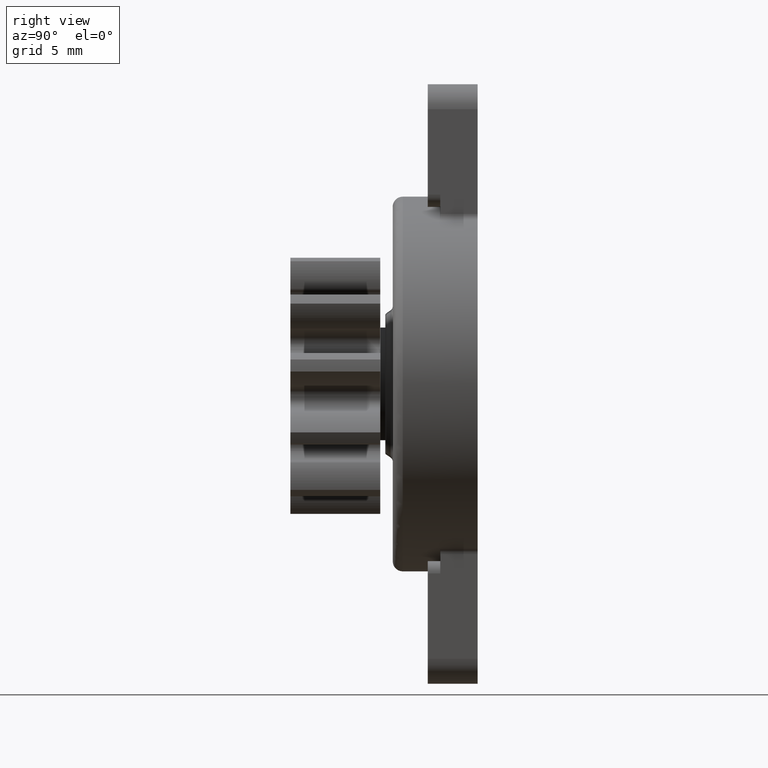
[diagram: clean part render]
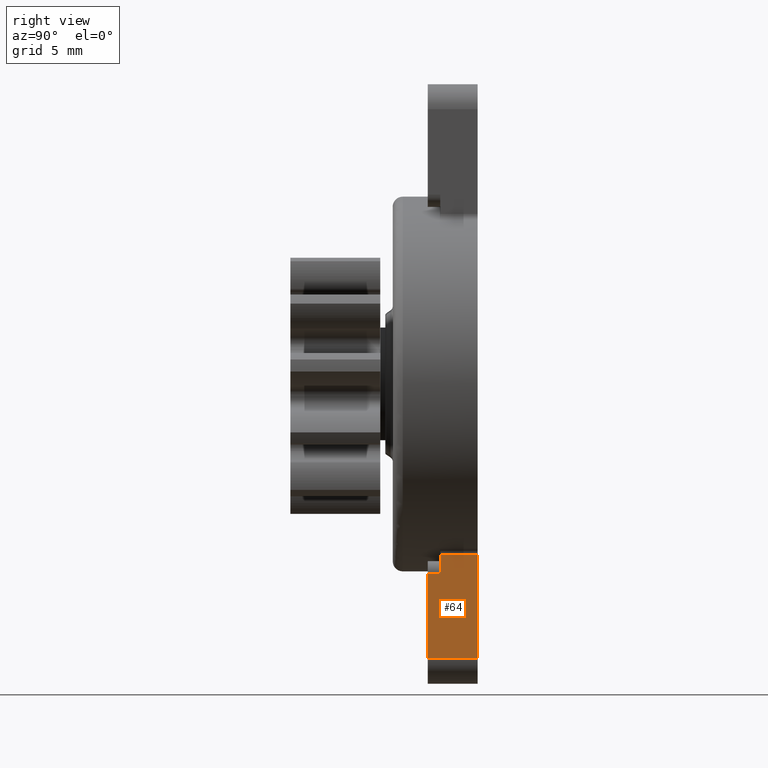
[diagram: same view with one face highlighted and labeled with its STEP entity id]
A machine part, right view. The second image highlights one B-rep face of the part: STEP entity #64.
In plain terms, the highlighted planar face has unit normal (1, 0, 0).
Its self-contained STEP definition (entity closure, byte-faithful):
#64=ADVANCED_FACE('',(#931),#930,.T.);
#930=PLANE('',#7261);
#931=FACE_OUTER_BOUND('',#7262,.T.);
#7258=CARTESIAN_POINT('',(3.50000000000E+00,-2.20000000000E+00,-6.39293090717E+00));
#7259=DIRECTION('',(1.00000000000E+00,0.00000000000E+00,0.00000000000E+00));
#7260=DIRECTION('',(0.00000000000E+00,0.00000000000E+00,-1.00000000000E+00));
#7261=AXIS2_PLACEMENT_3D('',#7258,#7259,#7260);
#7262=EDGE_LOOP('',(#10598,#10599,#10600,#10601,#10602,#10603));
#10598=ORIENTED_EDGE('',*,*,#14333,.T.);
#10599=ORIENTED_EDGE('',*,*,#14359,.T.);
#10600=ORIENTED_EDGE('',*,*,#14309,.F.);
#10601=ORIENTED_EDGE('',*,*,#14324,.T.);
#10602=ORIENTED_EDGE('',*,*,#14288,.F.);
#10603=ORIENTED_EDGE('',*,*,#14368,.F.);
#14288=EDGE_CURVE('',#16274,#16281,#16282,.T.);
#14309=EDGE_CURVE('',#16418,#16376,#16425,.T.);
#14324=EDGE_CURVE('',#16418,#16281,#16525,.T.);
#14333=EDGE_CURVE('',#16588,#16581,#16589,.T.);
#14359=EDGE_CURVE('',#16581,#16376,#16762,.T.);
#14368=EDGE_CURVE('',#16588,#16274,#16816,.T.);
#16274=VERTEX_POINT('',#28961);
#16281=VERTEX_POINT('',#28966);
#16282=LINE('',#28967,#28968);
#16376=VERTEX_POINT('',#29026);
#16418=VERTEX_POINT('',#29055);
#16425=LINE('',#29060,#29061);
#16525=LINE('',#29124,#29125);
#16581=VERTEX_POINT('',#29160);
#16588=VERTEX_POINT('',#29165);
#16589=LINE('',#29166,#29167);
#16762=LINE('',#29275,#29276);
#16816=LINE('',#29302,#29303);
#28961=CARTESIAN_POINT('',(3.50000009537E+00,-2.00000000000E+00,-1.09999999476E+01));
#28966=CARTESIAN_POINT('',(3.50000000000E+00,-2.00000000000E+00,-7.58711560000E+00));
#28967=CARTESIAN_POINT('',(3.50000000000E+00,-2.00000000000E+00,-1.09999999476E+01));
#28968=VECTOR('',#28969,3.41288434764E+00);
#28969=DIRECTION('',(0.00000000000E+00,0.00000000000E+00,1.00000000000E+00));
#29026=CARTESIAN_POINT('',(3.50000000000E+00,-1.50000000000E+00,-6.81175536540E+00));
#29055=CARTESIAN_POINT('',(3.50000000000E+00,-1.50000000000E+00,-7.58711560000E+00));
#29060=CARTESIAN_POINT('',(3.50000000000E+00,-1.50000000000E+00,-7.58711560000E+00));
#29061=VECTOR('',#29062,7.75360234605E-01);
#29062=DIRECTION('',(0.00000000000E+00,0.00000000000E+00,1.00000000000E+00));
#29124=CARTESIAN_POINT('',(3.50000000000E+00,-1.50000000000E+00,-7.58711560000E+00));
#29125=VECTOR('',#29126,5.00000000000E-01);
#29126=DIRECTION('',(0.00000000000E+00,-1.00000000000E+00,0.00000000000E+00));
#29160=CARTESIAN_POINT('',(3.50000000000E+00,0.00000000000E+00,-6.81175536540E+00));
#29165=CARTESIAN_POINT('',(3.50000009537E+00,0.00000000000E+00,-1.09999999476E+01));
#29166=CARTESIAN_POINT('',(3.50000000000E+00,0.00000000000E+00,-1.09999999476E+01));
#29167=VECTOR('',#29168,4.18824458224E+00);
#29168=DIRECTION('',(0.00000000000E+00,0.00000000000E+00,1.00000000000E+00));
#29275=CARTESIAN_POINT('',(3.50000000000E+00,0.00000000000E+00,-6.81175536540E+00));
#29276=VECTOR('',#29277,1.50000000000E+00);
#29277=DIRECTION('',(0.00000000000E+00,-1.00000000000E+00,0.00000000000E+00));
#29302=CARTESIAN_POINT('',(3.50000009537E+00,0.00000000000E+00,-1.09999999476E+01));
#29303=VECTOR('',#29304,2.00000000000E+00);
#29304=DIRECTION('',(0.00000000000E+00,-1.00000000000E+00,0.00000000000E+00));